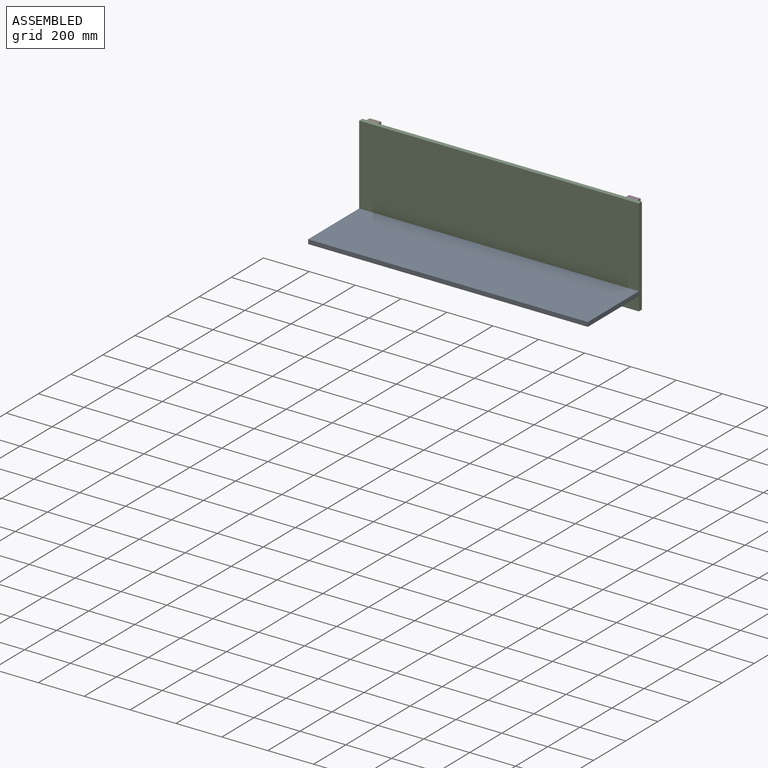
[diagram: assembled view]
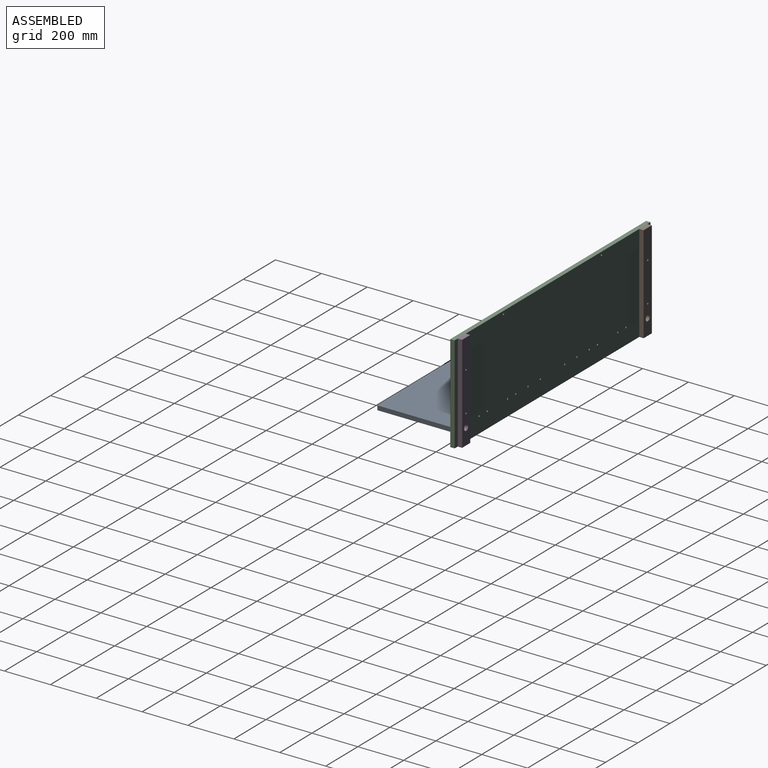
[diagram: assembled view, second angle]
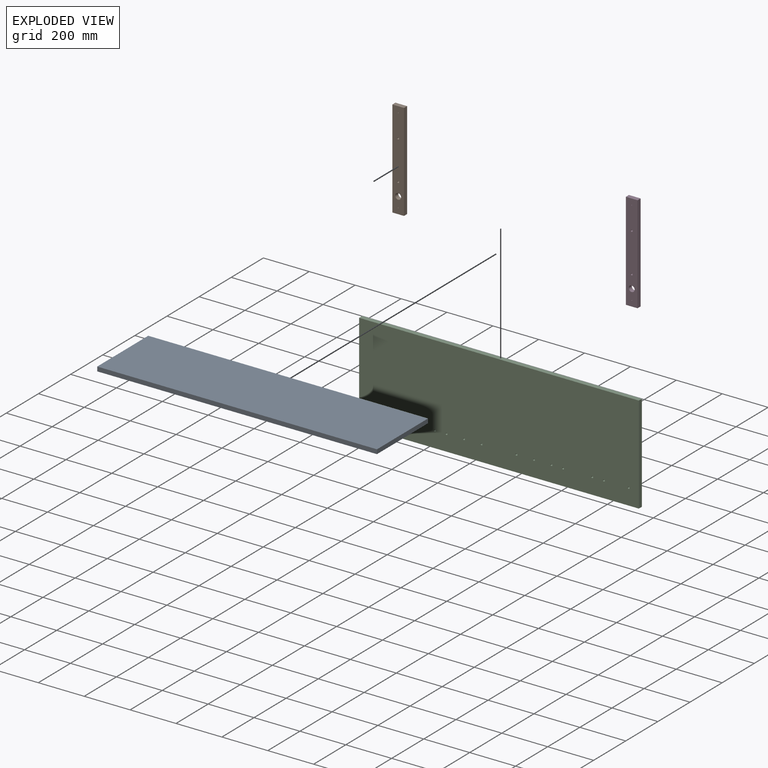
[diagram: exploded view]
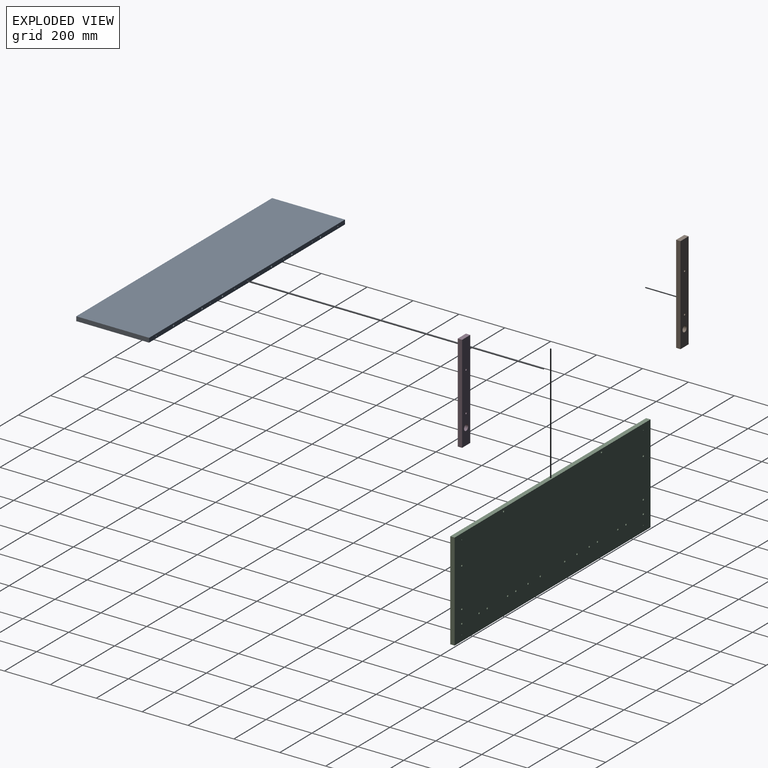
[diagram: exploded view, second angle]
ASSEMBLY  parts=4 mates=3
PART A: 34 faces, bbox 1219.2x317.5x19.1 mm
  f0: plane 317.5x19.05mm, normal (1,0,0), area 6048.4mm2, adj f1,f3,f4,f5
  f1: plane 1219.2x19.05mm, normal (0,1,0), area 22777.8mm2, adj f0,f2,f4,f5,f7,f9,f11,f13
  f2: plane 317.5x19.05mm, normal (-1,0,0), area 6048.4mm2, adj f1,f3,f4,f5
  f3: plane 1219.2x19.05mm, normal (0,-1,0), area 23225.8mm2, adj f0,f2,f4,f5
  f4: plane 1219.2x317.5mm, normal (0,0,1), area 387096mm2, adj f0,f1,f2,f3
  f5: plane 1219.2x317.5mm, normal (0,0,-1), area 387096mm2, adj f0,f1,f2,f3
  f6: cone r=0mm half-angle=59deg, axis (0,1,0), area 21.3mm2, adj f7
  f7: cylinder r=2.41mm len=38.1mm, axis (0,1,0), area 577.6mm2, adj f1,f6
  f8: cone r=0mm half-angle=59deg, axis (0,1,0), area 21.3mm2, adj f9
  f9: cylinder r=2.41mm len=38.1mm, axis (0,1,0), area 577.6mm2, adj f1,f8
  f10: cone r=0mm half-angle=59deg, axis (0,1,0), area 21.3mm2, adj f11
  f11: cylinder r=2.41mm len=38.1mm, axis (0,1,0), area 577.6mm2, adj f1,f10
  f12: cone r=0mm half-angle=59deg, axis (0,1,0), area 21.3mm2, adj f13
  f13: cylinder r=2.41mm len=38.1mm, axis (0,1,0), area 577.6mm2, adj f1,f12
  f14: cone r=0mm half-angle=59deg, axis (0,1,0), area 21.3mm2, adj f15
  f15: cylinder r=2.41mm len=38.1mm, axis (0,1,0), area 577.6mm2, adj f1,f14
  f16: cone r=0mm half-angle=59deg, axis (0,1,0), area 21.3mm2, adj f17
  f17: cylinder r=2.41mm len=38.1mm, axis (0,1,0), area 577.6mm2, adj f1,f16
  f18: cone r=0mm half-angle=59deg, axis (0,1,0), area 21.3mm2, adj f19
  f19: cylinder r=2.41mm len=38.1mm, axis (0,1,0), area 577.6mm2, adj f1,f18
  f20: cone r=0mm half-angle=59deg, axis (0,1,0), area 21.3mm2, adj f21
  f21: cylinder r=2.41mm len=38.1mm, axis (0,1,0), area 577.6mm2, adj f1,f20
  f22: cone r=0mm half-angle=59deg, axis (0,1,0), area 58.7mm2, adj f23
  f23: cylinder r=4mm len=15.24mm, axis (0,1,0), area 383.1mm2, adj f1,f22
  f24: cone r=0mm half-angle=59deg, axis (0,1,0), area 58.7mm2, adj f25
  f25: cylinder r=4mm len=15.24mm, axis (0,1,0), area 383.1mm2, adj f1,f24
  f26: cone r=0mm half-angle=59deg, axis (0,1,0), area 58.7mm2, adj f27
  f27: cylinder r=4mm len=15.24mm, axis (0,1,0), area 383.1mm2, adj f1,f26
  f28: cone r=0mm half-angle=59deg, axis (0,1,0), area 58.7mm2, adj f29
  f29: cylinder r=4mm len=15.24mm, axis (0,1,0), area 383.1mm2, adj f1,f28
  f30: cone r=0mm half-angle=59deg, axis (0,1,0), area 58.7mm2, adj f31
  f31: cylinder r=4mm len=15.24mm, axis (0,1,0), area 383.1mm2, adj f1,f30
  f32: cone r=0mm half-angle=59deg, axis (0,1,0), area 58.7mm2, adj f33
  f33: cylinder r=4mm len=15.24mm, axis (0,1,0), area 383.1mm2, adj f1,f32
PART B: 13 faces, bbox 50.8x19.1x425.5 mm
  f0: plane 425.45x19.05mm, normal (1,0,0), area 8104.8mm2, adj f1,f3,f4,f5
  f1: plane 50.8x19.05mm, normal (0,0,1), area 967.7mm2, adj f0,f2,f4,f5
  f2: plane 425.45x19.05mm, normal (-1,0,0), area 8104.8mm2, adj f1,f3,f4,f5
  f3: plane 50.8x19.05mm, normal (0,0,-1), area 967.7mm2, adj f0,f2,f4,f5
  f4: plane 425.45x50.8mm, normal (0,-1,0), area 20989.8mm2, adj f0,f1,f2,f3,f7,f9,f10,f11
  f5: plane 425.45x50.8mm, normal (0,1,0), area 21005.6mm2, adj f0,f1,f2,f3,f10,f11,f12
  f6: cone r=0mm half-angle=59deg, axis (0,-1,0), area 9.2mm2, adj f7
  f7: cylinder r=1.59mm len=14.22mm, axis (0,-1,0), area 141.9mm2, adj f4,f6
  f8: cone r=0mm half-angle=59deg, axis (0,-1,0), area 9.2mm2, adj f9
  f9: cylinder r=1.59mm len=14.22mm, axis (0,-1,0), area 141.9mm2, adj f4,f8
  f10: cylinder r=4mm len=19.05mm, axis (0,-1,0), area 478.8mm2, adj f4,f5
  f11: cylinder r=4mm len=19.05mm, axis (0,-1,0), area 478.8mm2, adj f4,f5
  f12: cylinder r=12.7mm len=25.4mm, axis (0,-1,0), area 1520.1mm2, adj f4,f5
PART C: 40 faces, bbox 1219.2x19.1x425.5 mm
  f0: plane 425.45x19.05mm, normal (1,0,0), area 8104.8mm2, adj f1,f3,f4,f5
  f1: plane 1219.2x19.05mm, normal (0,0,1), area 23225.8mm2, adj f0,f2,f4,f5
  f2: plane 425.45x19.05mm, normal (-1,0,0), area 8104.8mm2, adj f1,f3,f4,f5
  f3: plane 1219.2x19.05mm, normal (0,0,-1), area 23225.8mm2, adj f0,f2,f4,f5
  f4: plane 1219.2x425.45mm, normal (0,-1,0), area 518004.7mm2, adj f0,f1,f2,f3,f22,f23,f24,f25
  f5: plane 1219.2x425.45mm, normal (0,1,0), area 517671.4mm2, adj f0,f1,f2,f3,f7,f9,f11,f13
  f6: cone r=0mm half-angle=59deg, axis (0,1,0), area 9.2mm2, adj f7
  f7: cylinder r=1.59mm len=6.35mm, axis (0,1,0), area 63.3mm2, adj f5,f6
  f8: cone r=0mm half-angle=59deg, axis (0,1,0), area 9.2mm2, adj f9
  f9: cylinder r=1.59mm len=6.35mm, axis (0,1,0), area 63.3mm2, adj f5,f8
  f10: cone r=0mm half-angle=59deg, axis (0,1,0), area 9.2mm2, adj f11
  f11: cylinder r=1.59mm len=6.35mm, axis (0,1,0), area 63.3mm2, adj f5,f10
  f12: cone r=0mm half-angle=59deg, axis (0,1,0), area 9.2mm2, adj f13
  f13: cylinder r=1.59mm len=6.35mm, axis (0,1,0), area 63.3mm2, adj f5,f12
  f14: cone r=0mm half-angle=59deg, axis (0,1,0), area 58.7mm2, adj f15
  f15: cylinder r=4mm len=14.22mm, axis (0,1,0), area 357.5mm2, adj f5,f14
  f16: cone r=0mm half-angle=59deg, axis (0,1,0), area 58.7mm2, adj f17
  f17: cylinder r=4mm len=14.22mm, axis (0,1,0), area 357.5mm2, adj f5,f16
  f18: cone r=0mm half-angle=59deg, axis (0,1,0), area 58.7mm2, adj f19
  f19: cylinder r=4mm len=14.22mm, axis (0,1,0), area 357.5mm2, adj f5,f18
  f20: cone r=0mm half-angle=59deg, axis (0,1,0), area 58.7mm2, adj f21
  f21: cylinder r=4mm len=14.22mm, axis (0,1,0), area 357.5mm2, adj f5,f20
  f22: cylinder r=4mm len=19.05mm, axis (0,-1,0), area 478.8mm2, adj f4,f5
  f23: cylinder r=4mm len=19.05mm, axis (0,-1,0), area 478.8mm2, adj f4,f5
  f24: cylinder r=4mm len=19.05mm, axis (0,-1,0), area 478.8mm2, adj f4,f5
  f25: cylinder r=4mm len=19.05mm, axis (0,-1,0), area 478.8mm2, adj f4,f5
  f26: cylinder r=4mm len=19.05mm, axis (0,-1,0), area 478.8mm2, adj f4,f5
  f27: cylinder r=4mm len=19.05mm, axis (0,-1,0), area 478.8mm2, adj f4,f5
  f28: cylinder r=4mm len=19.05mm, axis (0,-1,0), area 478.8mm2, adj f4,f5
  f29: cylinder r=4mm len=19.05mm, axis (0,-1,0), area 478.8mm2, adj f4,f5
  f30: cone r=0mm half-angle=59deg, axis (0,1,0), area 58.7mm2, adj f31
  f31: cylinder r=4mm len=14.22mm, axis (0,1,0), area 357.5mm2, adj f5,f30
  f32: cone r=0mm half-angle=59deg, axis (0,1,0), area 58.7mm2, adj f33
  f33: cylinder r=4mm len=14.22mm, axis (0,1,0), area 357.5mm2, adj f5,f32
  f34: cylinder r=4mm len=19.05mm, axis (0,1,0), area 478.8mm2, adj f4,f5
  f35: cylinder r=4mm len=19.05mm, axis (0,1,0), area 478.8mm2, adj f4,f5
  f36: cylinder r=4mm len=19.05mm, axis (0,1,0), area 478.8mm2, adj f4,f5
  f37: cylinder r=4mm len=19.05mm, axis (0,1,0), area 478.8mm2, adj f4,f5
  f38: cylinder r=4mm len=19.05mm, axis (0,1,0), area 478.8mm2, adj f4,f5
  f39: cylinder r=4mm len=19.05mm, axis (0,1,0), area 478.8mm2, adj f4,f5
PART D: same geometry as B
PLACE A t=(-72.08,-159.64,-77.02)mm
PLACE B t=(-637.23,37.21,75.38)mm
PLACE C t=(-72.08,18.16,75.38)mm
PLACE D t=(493.07,37.21,75.38)mm
MATE planar B.f11 <-> C.f16  axis (0,-1,0) through (-637.23,18.16,161.1)mm
MATE planar D.f11 <-> C.f18  axis (0,-1,0) through (493.07,18.16,161.1)mm
MATE planar A.f20 <-> C.f26  axis (0,1,0) through (493.07,-0.89,-67.5)mm
